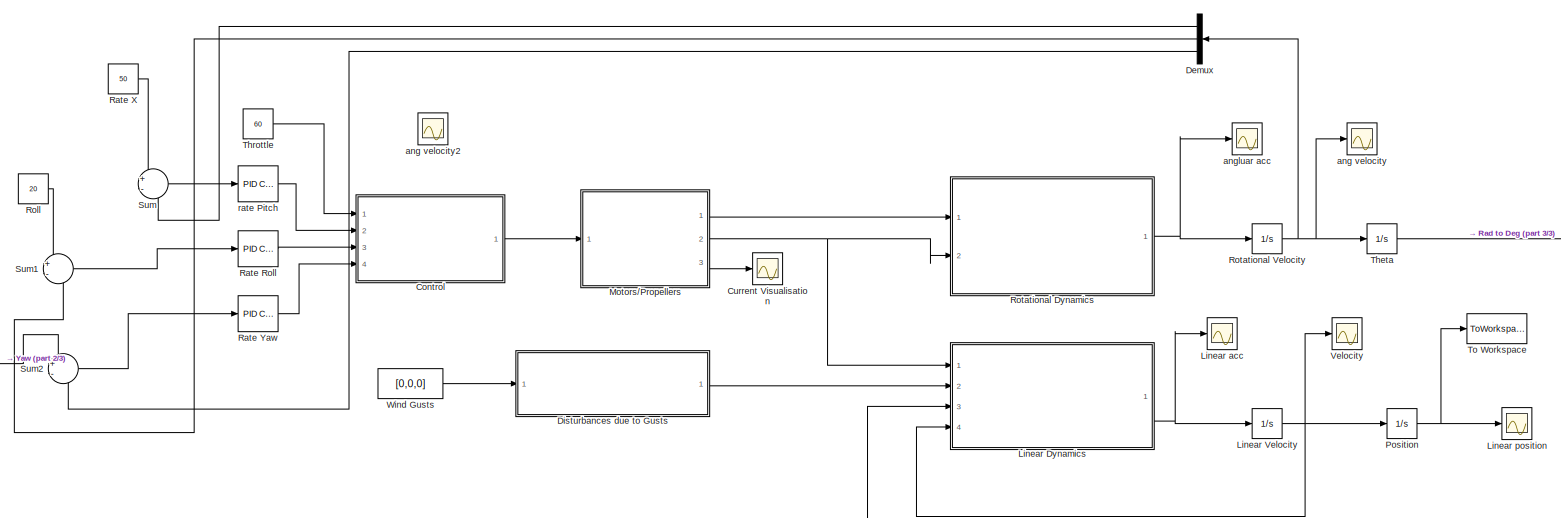
[diagram: root canvas - part 1/3, most of the canvas]
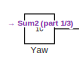
[diagram: root canvas - part 2/3, middle left region]
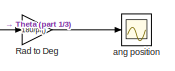
[diagram: root canvas - part 3/3, bottom right region]
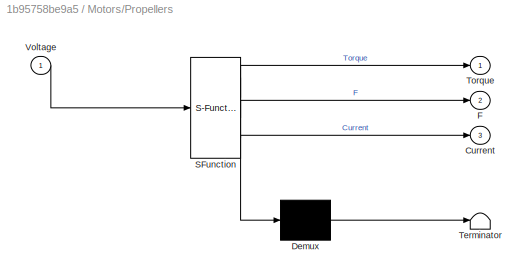
MODEL slx_1b95758be9a5
KIND model
CONFIG AbsTol = auto
CONFIG EnableMultiTasking = off
CONFIG FixedStep = auto
CONFIG MaxStep = auto
CONFIG MinStep = auto
CONFIG RelTol = 1e-3
CONFIG SampleTimeConstraint = Unconstrained
CONFIG SolverName = VariableStepAuto
CONFIG StartTime = 0.0
CONFIG StopTime = 100
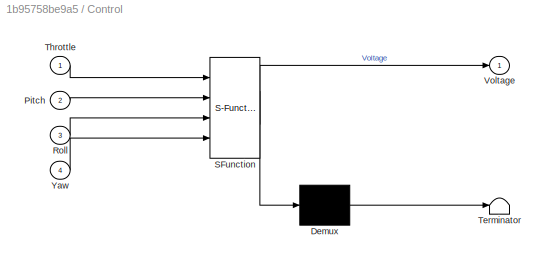
BLOCK [SubSystem] Control
  ErrorFcn = Stateflow.Translate.translate
  PermitHierarchicalResolution = ExplicitOnly
  Ports = [4, 1]
  RequestExecContextInheritance = off
  SFBlockType = MATLAB Function
  TreatAsAtomicUnit = on
BLOCK [Demux] Control/ Demux 
  Outputs = 1
  Ports = [1, 1]
BLOCK [S-Function] Control/ SFunction 
  EnableBusSupport = on
  FunctionName = sf_sfun
  PortCounts = [4 2]
  Ports = [4, 2]
  SFcnIsStateOwnerBlock = off
  SFunctionDeploymentMode = off
  Tag = Stateflow S-Function 5
BLOCK [Terminator] Control/ Terminator 
BLOCK [Inport] Control/Pitch
  Port = 2
BLOCK [Inport] Control/Roll
  Port = 3
BLOCK [Inport] Control/Throttle
BLOCK [Outport] Control/Voltage
BLOCK [Inport] Control/Yaw
  Port = 4
BLOCK [Scope] Current Visualisation 
  Floating = off
  NumInputPorts = 1
  Ports = [1]
  ScopeSpecificationString = Simulink.scopes.TimeScopeBlockCfg('CurrentConfiguration', extmgr.ConfigurationSet(extmgr.Configuration('Core','General UI',true),extmgr.Configuration('Core','Source UI',true),extmgr.Configuration('Sources','WiredSimulink',true,'DataLoggingVariableName','ScopeData6'),extmgr.Configuration('Visuals','Time Domain',true,'SerializedDisplays',{struct('MinYLimReal','-2.21161','MaxYLimReal','171.41822','YL...<+1482ch>
BLOCK [Demux] Demux
  Outputs = 3
  Ports = [1, 3]
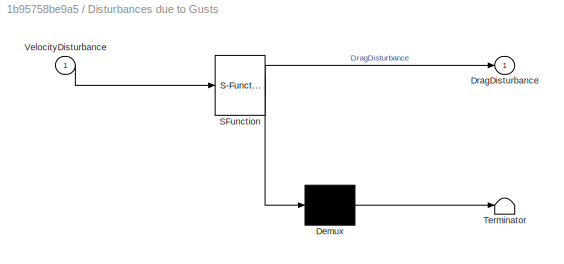
BLOCK [SubSystem] Disturbances due to Gusts
  ErrorFcn = Stateflow.Translate.translate
  PermitHierarchicalResolution = ExplicitOnly
  Ports = [1, 1]
  RequestExecContextInheritance = off
  SFBlockType = MATLAB Function
  TreatAsAtomicUnit = on
BLOCK [Demux] Disturbances due to Gusts/ Demux 
  Outputs = 1
  Ports = [1, 1]
BLOCK [S-Function] Disturbances due to Gusts/ SFunction 
  EnableBusSupport = on
  FunctionName = sf_sfun
  PortCounts = [1 2]
  Ports = [1, 2]
  SFcnIsStateOwnerBlock = off
  SFunctionDeploymentMode = off
  Tag = Stateflow S-Function 4
BLOCK [Terminator] Disturbances due to Gusts/ Terminator 
BLOCK [Outport] Disturbances due to Gusts/DragDisturbance
BLOCK [Inport] Disturbances due to Gusts/VelocityDisturbance
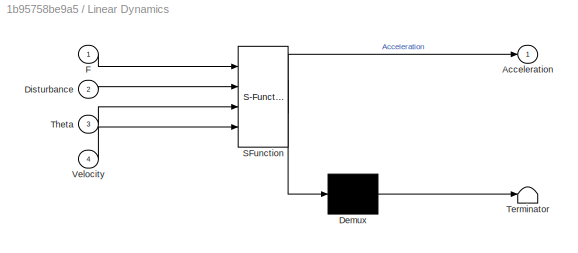
BLOCK [SubSystem] Linear Dynamics
  ErrorFcn = Stateflow.Translate.translate
  PermitHierarchicalResolution = ExplicitOnly
  Ports = [4, 1]
  RequestExecContextInheritance = off
  SFBlockType = MATLAB Function
  TreatAsAtomicUnit = on
BLOCK [Demux] Linear Dynamics/ Demux 
  Outputs = 1
  Ports = [1, 1]
BLOCK [S-Function] Linear Dynamics/ SFunction 
  EnableBusSupport = on
  FunctionName = sf_sfun
  PortCounts = [4 2]
  Ports = [4, 2]
  SFcnIsStateOwnerBlock = off
  SFunctionDeploymentMode = off
  Tag = Stateflow S-Function 3
BLOCK [Terminator] Linear Dynamics/ Terminator 
BLOCK [Outport] Linear Dynamics/Acceleration
BLOCK [Inport] Linear Dynamics/Disturbance
  Port = 2
BLOCK [Inport] Linear Dynamics/F
BLOCK [Inport] Linear Dynamics/Theta
  Port = 3
BLOCK [Inport] Linear Dynamics/Velocity
  Port = 4
BLOCK [Integrator] Linear Velocity
  Ports = [1, 1]
BLOCK [Scope] Linear acc
  Floating = off
  NumInputPorts = 1
  Ports = [1]
  ScopeSpecificationString = Simulink.scopes.TimeScopeBlockCfg('CurrentConfiguration', extmgr.ConfigurationSet(extmgr.Configuration('Core','General UI',true),extmgr.Configuration('Core','Source UI',true),extmgr.Configuration('Sources','WiredSimulink',true,'DataLoggingVariableName','ScopeData5'),extmgr.Configuration('Visuals','Time Domain',true),extmgr.Configuration('Tools','Plot Navigation',true),extmgr.Configuration('Tools',...<+40ch>
BLOCK [Scope] Linear position
  Floating = off
  NumInputPorts = 1
  Ports = [1]
  ScopeSpecificationString = Simulink.scopes.TimeScopeBlockCfg('CurrentConfiguration', extmgr.ConfigurationSet(extmgr.Configuration('Core','General UI',true),extmgr.Configuration('Core','Source UI',true),extmgr.Configuration('Sources','WiredSimulink',true,'DataLoggingVariableName','ScopeData3'),extmgr.Configuration('Visuals','Time Domain',true,'SerializedDisplays',{struct('MinYLimReal','-36.67861','MaxYLimReal','139.58534','Y...<+1386ch>
BLOCK [SubSystem] Motors//Propellers
  ErrorFcn = Stateflow.Translate.translate
  PermitHierarchicalResolution = ExplicitOnly
  Ports = [1, 3]
  RequestExecContextInheritance = off
  SFBlockType = MATLAB Function
  TreatAsAtomicUnit = on
BLOCK [Demux] Motors//Propellers/ Demux 
  Outputs = 1
  Ports = [1, 1]
BLOCK [S-Function] Motors//Propellers/ SFunction 
  EnableBusSupport = on
  FunctionName = sf_sfun
  PortCounts = [1 4]
  Ports = [1, 4]
  SFcnIsStateOwnerBlock = off
  SFunctionDeploymentMode = off
  Tag = Stateflow S-Function 2
BLOCK [Terminator] Motors//Propellers/ Terminator 
BLOCK [Outport] Motors//Propellers/Current
  Port = 3
BLOCK [Outport] Motors//Propellers/F
  Port = 2
BLOCK [Outport] Motors//Propellers/Torque
BLOCK [Inport] Motors//Propellers/Voltage
BLOCK [Integrator] Position
  Ports = [1, 1]
BLOCK [Gain] Rad to Deg
  Gain = 180/pi()
BLOCK [Reference] Rate Roll  REF=pid_lib/PID Controller
  Ports = [1, 1]
  SourceBlock = pid_lib/PID Controller
  SourceProductBaseCode = SL
  SourceType = PID 1dof
BLOCK [Constant] Rate X
  Value = 50
BLOCK [Reference] Rate Yaw  REF=pid_lib/PID Controller
  Ports = [1, 1]
  SourceBlock = pid_lib/PID Controller
  SourceProductBaseCode = SL
  SourceType = PID 1dof
BLOCK [Constant] Roll
  Value = 20
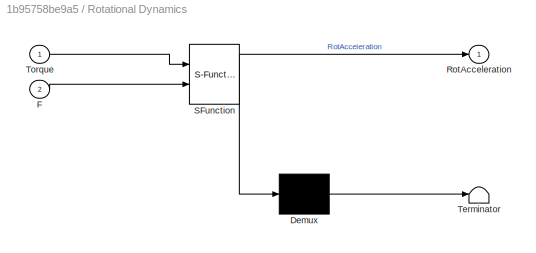
BLOCK [SubSystem] Rotational Dynamics
  ErrorFcn = Stateflow.Translate.translate
  PermitHierarchicalResolution = ExplicitOnly
  Ports = [2, 1]
  RequestExecContextInheritance = off
  SFBlockType = MATLAB Function
  TreatAsAtomicUnit = on
BLOCK [Demux] Rotational Dynamics/ Demux 
  Outputs = 1
  Ports = [1, 1]
BLOCK [S-Function] Rotational Dynamics/ SFunction 
  EnableBusSupport = on
  FunctionName = sf_sfun
  PortCounts = [2 2]
  Ports = [2, 2]
  SFcnIsStateOwnerBlock = off
  SFunctionDeploymentMode = off
  Tag = Stateflow S-Function 1
BLOCK [Terminator] Rotational Dynamics/ Terminator 
BLOCK [Inport] Rotational Dynamics/F
  Port = 2
BLOCK [Outport] Rotational Dynamics/RotAcceleration
BLOCK [Inport] Rotational Dynamics/Torque
BLOCK [Integrator] Rotational Velocity
  Ports = [1, 1]
BLOCK [Sum] Sum
  Inputs = +-
  Ports = [2, 1]
BLOCK [Sum] Sum1
  Inputs = +-
  Ports = [2, 1]
BLOCK [Sum] Sum2
  Inputs = +-
  Ports = [2, 1]
BLOCK [Integrator] Theta
  Ports = [1, 1]
BLOCK [Constant] Throttle
  Value = 60
BLOCK [ToWorkspace] To Workspace
  FixptAsFi = on
  MaxDataPoints = inf
  Ports = [1]
  SampleTime = -1
  Save2DSignal = 2-D array (concatenate along first dimension)
  VariableName = PositionVector
BLOCK [Scope] Velocity 
  Floating = off
  NumInputPorts = 1
  Ports = [1]
  ScopeSpecificationString = Simulink.scopes.TimeScopeBlockCfg('CurrentConfiguration', extmgr.ConfigurationSet(extmgr.Configuration('Core','General UI',true),extmgr.Configuration('Core','Source UI',true),extmgr.Configuration('Sources','WiredSimulink',true),extmgr.Configuration('Visuals','Time Domain',true,'SerializedDisplays',{struct('MinYLimReal','-1.53476','MaxYLimReal','3.19237','YLabelReal','','MinYLimMag','0.00000','MaxY...<+1396ch>
BLOCK [Constant] Wind Gusts
  Value = [0,0,0]
BLOCK [Constant] Yaw
  Value = 10
BLOCK [Scope] ang position
  Floating = off
  NumInputPorts = 1
  Ports = [1]
  ScopeSpecificationString = Simulink.scopes.TimeScopeBlockCfg('CurrentConfiguration', extmgr.ConfigurationSet(extmgr.Configuration('Core','General UI',true),extmgr.Configuration('Core','Source UI',true),extmgr.Configuration('Sources','WiredSimulink',true,'DataLoggingVariableName','ScopeData2'),extmgr.Configuration('Visuals','Time Domain',true,'SerializedDisplays',{struct('MinYLimReal','-35810.92323','MaxYLimReal','322294.126...<+1433ch>
BLOCK [Scope] ang velocity
  Floating = off
  NumInputPorts = 1
  Ports = [1]
  ScopeSpecificationString = Simulink.scopes.TimeScopeBlockCfg('CurrentConfiguration', extmgr.ConfigurationSet(extmgr.Configuration('Core','General UI',true),extmgr.Configuration('Core','Source UI',true),extmgr.Configuration('Sources','WiredSimulink',true,'DataLoggingVariableName','ScopeData1'),extmgr.Configuration('Visuals','Time Domain',true,'SerializedDisplays',{struct('MinYLimReal','-7.10578','MaxYLimReal','56.41091','YLa...<+1415ch>
BLOCK [Scope] ang velocity2
  Floating = off
  NumInputPorts = 1
  Ports = [1]
  ScopeSpecificationString = Simulink.scopes.TimeScopeBlockCfg('CurrentConfiguration', extmgr.ConfigurationSet(extmgr.Configuration('Core','General UI',true),extmgr.Configuration('Core','Source UI',true),extmgr.Configuration('Sources','WiredSimulink',true,'DataLoggingVariableName','ScopeData8'),extmgr.Configuration('Visuals','Time Domain',true,'SerializedDisplays',{struct('MinYLimReal','20.51535','MaxYLimReal','108.83163','YL...<+1426ch>
BLOCK [Scope] angluar acc
  Floating = off
  NumInputPorts = 1
  Ports = [1]
  ScopeSpecificationString = Simulink.scopes.TimeScopeBlockCfg('CurrentConfiguration', extmgr.ConfigurationSet(extmgr.Configuration('Core','General UI',true),extmgr.Configuration('Core','Source UI',true),extmgr.Configuration('Sources','WiredSimulink',true,'DataLoggingVariableName','ScopeData4'),extmgr.Configuration('Visuals','Time Domain',true,'SerializedDisplays',{struct('MinYLimReal','-65.2611','MaxYLimReal','553.34113','YL...<+1436ch>
BLOCK [Reference] rate Pitch  REF=pid_lib/PID Controller
  Ports = [1, 1]
  SourceBlock = pid_lib/PID Controller
  SourceProductBaseCode = SL
  SourceType = PID 1dof
LINE Control:1 -> Motors//Propellers:1
LINE Demux:1 -> Sum:2
LINE Demux:2 -> Sum1:2
LINE Demux:3 -> Sum2:2
LINE Disturbances due to Gusts:1 -> Linear Dynamics:2
NET Linear Dynamics:1 -> Linear Velocity:1, Linear acc:1
NET Linear Velocity:1 -> Linear Dynamics:4, Position:1, Velocity :1
LINE Motors//Propellers:1 -> Rotational Dynamics:1
NET Motors//Propellers:2 -> Linear Dynamics:1, Rotational Dynamics:2
LINE Motors//Propellers:3 -> Current Visualisation :1
NET Position:1 -> Linear position:1, To Workspace:1
LINE Rad to Deg:1 -> ang position:1
LINE Rate Roll:1 -> Control:3
LINE Rate X:1 -> Sum:1
LINE Rate Yaw:1 -> Control:4
LINE Roll:1 -> Sum1:1
NET Rotational Dynamics:1 -> Rotational Velocity:1, angluar acc:1
NET Rotational Velocity:1 -> Demux:1, Theta:1, ang velocity:1
LINE Sum1:1 -> Rate Roll:1
LINE Sum2:1 -> Rate Yaw:1
LINE Sum:1 -> rate Pitch:1
NET Theta:1 -> Linear Dynamics:3, Rad to Deg:1
LINE Throttle:1 -> Control:1
LINE Wind Gusts:1 -> Disturbances due to Gusts:1
LINE Yaw:1 -> Sum2:1
LINE rate Pitch:1 -> Control:2
note: NET lines group one-source signal fan-out (src -> all destinations, sorted); 1:1 wires keep LINE
CHART Rotational Dynamics states=1 transitions=1
  STATE_LABEL 'eML_blk_kernel()'
  STATE_LABEL 'SCRIPT:\nfunction RotAcceleration = fcn(Torque, F)\nMoment=[0 0 0];\nRotAcceleration=[0 0 0];\nI=[0.003,0.003,0.007];\n% to keep in mind : positive torque F ( clockwise) / negative torqyue F (\n% anti-clockwise)\nMoment(1)=(F(3)+F(4))*0.237/2-(F(1)+F(2))*0.237/2; % moment wrt x direction (roll)\nMoment(2)=(F(3)+F(2))*0.237/2-(F(1)+F(4))*0.237/2; % moment wrt y direction (putch)\nMoment(3)=Torque(4)-Torque(...<+162ch>'
CHART Motors//Propellers states=1 transitions=1
  STATE_LABEL 'eML_blk_kernel()'
  STATE_LABEL 'SCRIPT:\nfunction [Torque, F, Current] = fcn(Voltage)\nRPM=[0 0 0 0];\nTorque=[0 0 0 0];\nCurrent=[0 0 0 0];\nF=[0 0 0 0];\nfor i=1:4\n    RPM(i)=-2.6931*Voltage(i)^3+1400*Voltage(i);\n    Ct=2*10^-15*RPM(i)^3-4*10^-11*RPM(i)^2+3*10^-7*RPM(i)+0.1013; % Thrust coefficient\n    F(i)=Ct*1.225*(RPM(i)/60)^2*0.2^4; % Thrust produced by the motor/propeller couples\n    Torque(i)=4*10^-14*RPM(i)^3+8*10^-12*RPM(i)^...<+82ch>'
CHART Linear Dynamics states=1 transitions=1
  STATE_LABEL 'eML_blk_kernel()'
  STATE_LABEL 'SCRIPT:\nfunction Acceleration  = fcn(F,Disturbance,Theta,Velocity)\nm=0.743;\ng=9.81;\nA=[0.0197 0.0197 0.0512]; % projected areas\nrho=1.225; % air density at sea-level \nCd=1; % coefficient of drag\n\nAcceleration=[0 0 0];\nForce=[0 0 0];\nFprop=[0;0;0]; %thrust of propellers in the direction x, y and z\n\nFprop(1,1)=sin(Theta(2))*cos(Theta(1))*(F(1)+F(2)+F(3)+F(4)); % thrust in x\nFprop(2,1)=sin(Theta(1))*...<+1145ch>'
CHART Disturbances due to Gusts states=1 transitions=1
  STATE_LABEL 'eML_blk_kernel()'
  STATE_LABEL 'SCRIPT:\nfunction DragDisturbance = fcn(VelocityDisturbance)\nA=[0.0197 0.0197 0.0197*2*1.3];\nDragDisturbance=[0 0 0];\nrho=1.225;\nCd=1;\n\nfor i=1:3\n    if VelocityDisturbance(i)<0\n        DragDisturbance(i)=-0.5*rho*VelocityDisturbance(i)^2*A(i)*Cd;\n    else\n        DragDisturbance(i)=0.5*rho*VelocityDisturbance(i)^2*A(i)*Cd;\n    end\nend\n'
CHART Control states=1 transitions=1
  STATE_LABEL 'eML_blk_kernel()'
  STATE_LABEL 'SCRIPT:\nfunction Voltage = fcn(Throttle, Pitch, Roll, Yaw)\nCorrect=0;\nif (Pitch/2+Roll/2+Yaw/2)>(100-Throttle)\n    Correct=((Pitch/2+Roll/2+Yaw/2)-(100-Throttle));\nend\nif (Pitch/2+Roll/2+Yaw/2)>(Throttle)\n    if Correct<((Pitch/2+Roll/2+Yaw/2)-(Throttle))\n       Correct=((Pitch/2+Roll/2+Yaw/2)-(Throttle));\n    end\nend\n%factors on correct to be relevant to the comparisons above which look at\n%the a...<+282ch>'
CHART  states=0 transitions=0
CHART  states=0 transitions=0
CHART  states=0 transitions=0
CHART  states=0 transitions=0
CHART  states=0 transitions=0
